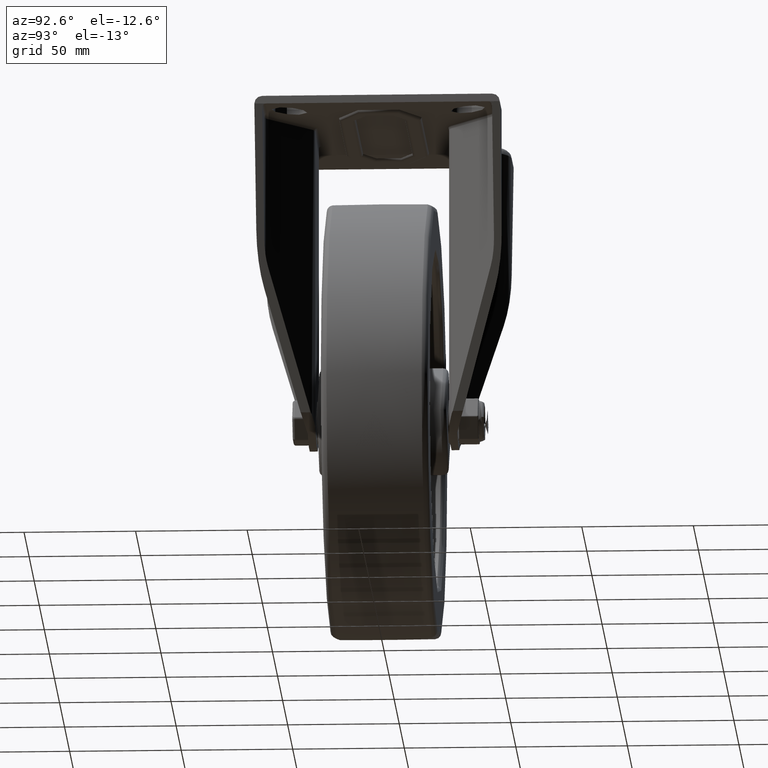
[diagram: clean part render]
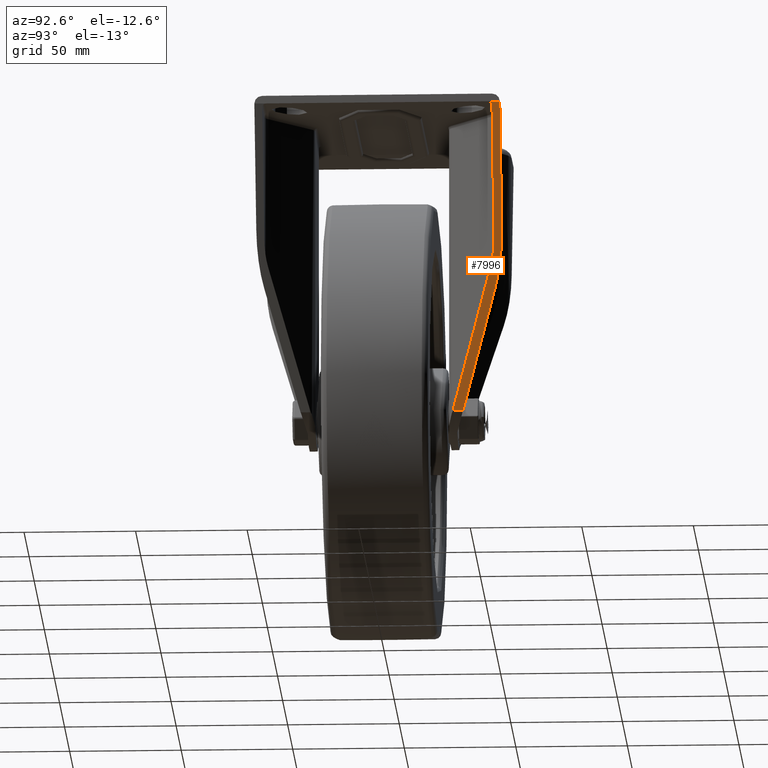
[diagram: same view with one face highlighted and labeled with its STEP entity id]
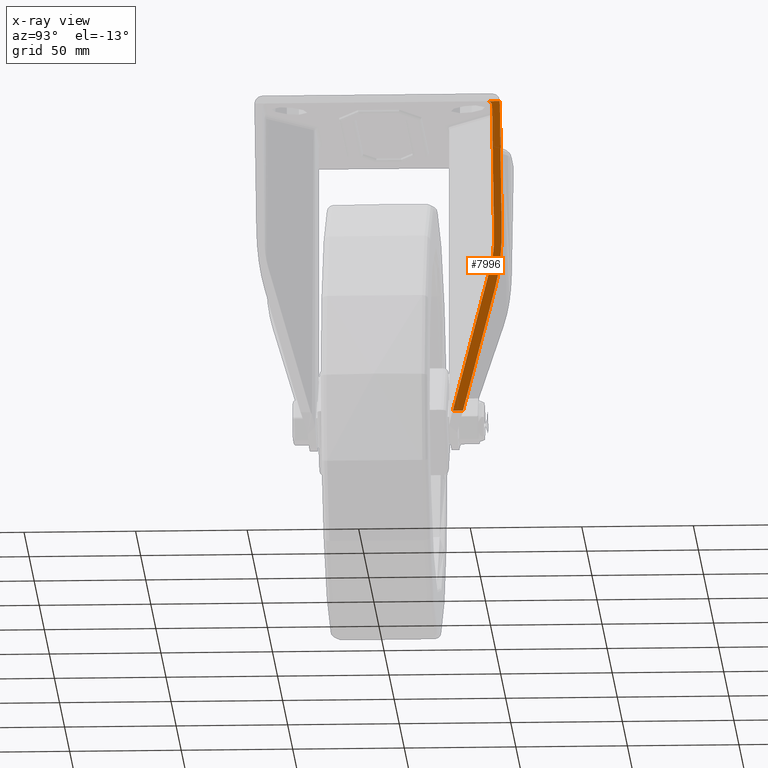
[diagram: x-ray of the same camera — body ghosted, the highlighted face saturated]
A machine part, auxiliary view. The second image highlights one B-rep face of the part: STEP entity #7996.
The next image is the same camera in x-ray: the body ghosted, the highlighted face saturated — about 0% of this face is hidden behind the body in this view.
In plain terms, the highlighted planar face has unit normal (0.9428, 0, -0.3334).
Its self-contained STEP definition (entity closure, byte-faithful):
#330=PLANE('',#8728);
#730=ELLIPSE('',#8571,41.9937945853243,14.);
#732=ELLIPSE('',#8597,1.85618958956044,1.75);
#735=ELLIPSE('',#8610,20.9968972926622,7.);
#861=FACE_OUTER_BOUND('',#1347,.T.);
#1347=EDGE_LOOP('',(#5845,#5846,#5847,#5848,#5849,#5850,#5851,#5852,#5853));
#1922=LINE('',#12686,#2547);
#1929=LINE('',#12715,#2554);
#1930=LINE('',#12717,#2555);
#1931=LINE('',#12718,#2556);
#1932=LINE('',#12720,#2557);
#1933=LINE('',#12721,#2558);
#2547=VECTOR('',#9966,1000.);
#2554=VECTOR('',#10013,999.999999999999);
#2555=VECTOR('',#10016,1000.);
#2556=VECTOR('',#10017,999.999999999999);
#2557=VECTOR('',#10018,1000.);
#2558=VECTOR('',#10019,1000.);
#3451=VERTEX_POINT('',#11950);
#3452=VERTEX_POINT('',#11951);
#3472=VERTEX_POINT('',#12015);
#3481=VERTEX_POINT('',#12040);
#3482=VERTEX_POINT('',#12042);
#3496=VERTEX_POINT('',#12084);
#3497=VERTEX_POINT('',#12085);
#3595=VERTEX_POINT('',#12684);
#3598=VERTEX_POINT('',#12719);
#4220=EDGE_CURVE('',#3451,#3452,#730,.T.);
#4258=EDGE_CURVE('',#3482,#3481,#732,.T.);
#4276=EDGE_CURVE('',#3496,#3497,#735,.T.);
#4445=EDGE_CURVE('',#3497,#3595,#1922,.T.);
#4458=EDGE_CURVE('',#3452,#3472,#1929,.T.);
#4459=EDGE_CURVE('',#3472,#3482,#1930,.T.);
#4460=EDGE_CURVE('',#3481,#3496,#1931,.T.);
#4461=EDGE_CURVE('',#3598,#3595,#1932,.T.);
#4462=EDGE_CURVE('',#3598,#3451,#1933,.T.);
#5845=ORIENTED_EDGE('',*,*,#4220,.T.);
#5846=ORIENTED_EDGE('',*,*,#4458,.T.);
#5847=ORIENTED_EDGE('',*,*,#4459,.T.);
#5848=ORIENTED_EDGE('',*,*,#4258,.T.);
#5849=ORIENTED_EDGE('',*,*,#4460,.T.);
#5850=ORIENTED_EDGE('',*,*,#4276,.T.);
#5851=ORIENTED_EDGE('',*,*,#4445,.T.);
#5852=ORIENTED_EDGE('',*,*,#4461,.F.);
#5853=ORIENTED_EDGE('',*,*,#4462,.T.);
#7996=ADVANCED_FACE('',(#861),#330,.T.);
#8571=AXIS2_PLACEMENT_3D('',#11952,#9570,#9571);
#8597=AXIS2_PLACEMENT_3D('',#12043,#9641,#9642);
#8610=AXIS2_PLACEMENT_3D('',#12086,#9676,#9677);
#8728=AXIS2_PLACEMENT_3D('',#12716,#10014,#10015);
#9570=DIRECTION('center_axis',(0.942791625296431,-1.02371095805281E-32,
-0.333382589933719));
#9571=DIRECTION('ref_axis',(-0.333382589933719,1.03272608078566E-16,-0.942791625296431));
#9641=DIRECTION('center_axis',(-0.942791625296431,2.8950105587945E-32,0.333382589933719));
#9642=DIRECTION('ref_axis',(0.333382589933719,-5.25690888864444E-16,0.942791625296431));
#9676=DIRECTION('center_axis',(-0.942791625296431,1.27963869756601E-33,
0.333382589933719));
#9677=DIRECTION('ref_axis',(-0.333382589933719,2.06545216157132E-17,-0.942791625296431));
#9966=DIRECTION('',(-0.321393207174966,-0.265767459779299,-0.908886166527056));
#10013=DIRECTION('',(0.333382589933719,0.,0.942791625296431));
#10014=DIRECTION('center_axis',(0.942791625296431,0.,-0.333382589933719));
#10015=DIRECTION('ref_axis',(-0.333382589933719,0.,-0.942791625296431));
#10016=DIRECTION('',(0.,-1.,0.));
#10017=DIRECTION('',(-0.333382589933719,0.,-0.942791625296431));
#10018=DIRECTION('',(0.,-1.,0.));
#10019=DIRECTION('',(0.321393207174966,0.265767459779299,0.908886166527056));
#11950=CARTESIAN_POINT('',(40.6169711219097,51.7890338123484,-82.3520063971801));
#11951=CARTESIAN_POINT('',(49.538672159044,55.,-57.1218195932413));
#11952=CARTESIAN_POINT('Origin',(49.538672159044,41.,-57.1218195932413));
#12015=CARTESIAN_POINT('',(68.5,55.,-3.50000000000001));
#12040=CARTESIAN_POINT('',(67.8811787072243,51.5,-5.25));
#12042=CARTESIAN_POINT('',(68.5,49.75,-3.5));
#12043=CARTESIAN_POINT('Origin',(67.8811787072243,49.75,-5.25));
#12084=CARTESIAN_POINT('',(48.279004119283,51.5,-60.6841066304149));
#12085=CARTESIAN_POINT('',(43.8181536007158,49.8945169061742,-73.2992000323843));
#12086=CARTESIAN_POINT('Origin',(48.279004119283,44.5,-60.6841066304149));
#12684=CARTESIAN_POINT('',(22.,31.85258219789,-135.));
#12686=CARTESIAN_POINT('',(33.432304419264,41.306218544589,-102.66993481434));
#12715=CARTESIAN_POINT('',(62.3831793415405,55.,-20.7981057330629));
#12716=CARTESIAN_POINT('Origin',(56.5,-55.,-37.4354838709678));
#12717=CARTESIAN_POINT('',(68.5,-27.5,-3.5));
#12718=CARTESIAN_POINT('',(39.2377948189233,51.5,-86.2522576626148));
#12719=CARTESIAN_POINT('',(22.,36.3942307692308,-135.));
#12720=CARTESIAN_POINT('',(22.,42.5,-135.));
#12721=CARTESIAN_POINT('',(54.6718962481265,63.4113757436431,-42.6052826531476));